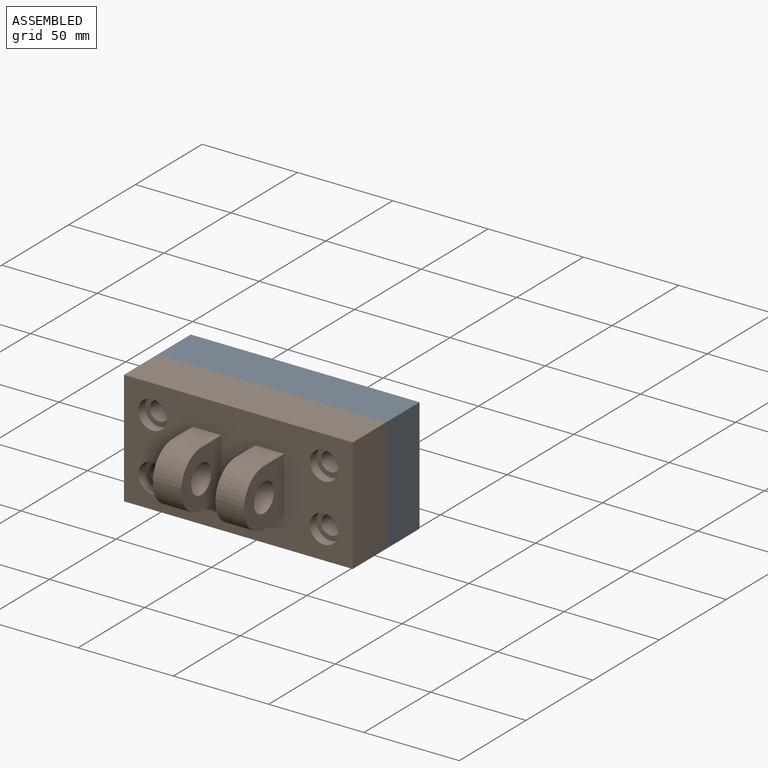
[diagram: assembled view]
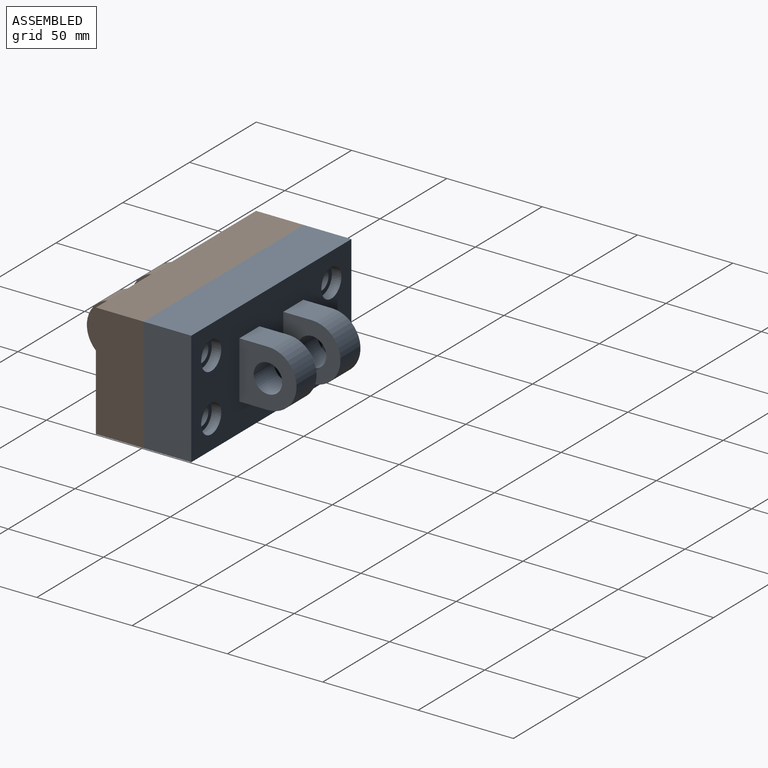
[diagram: assembled view, second angle]
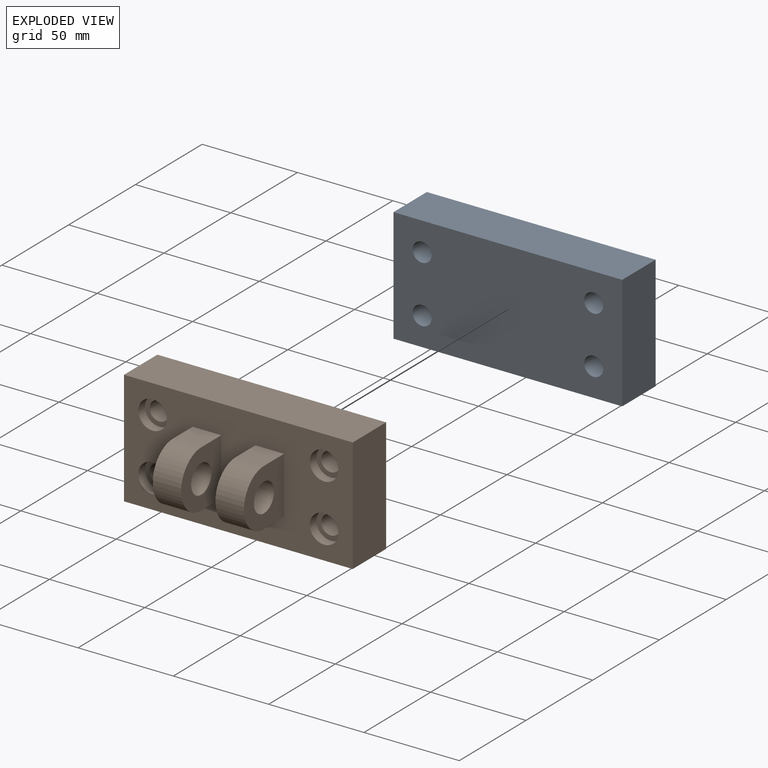
[diagram: exploded view]
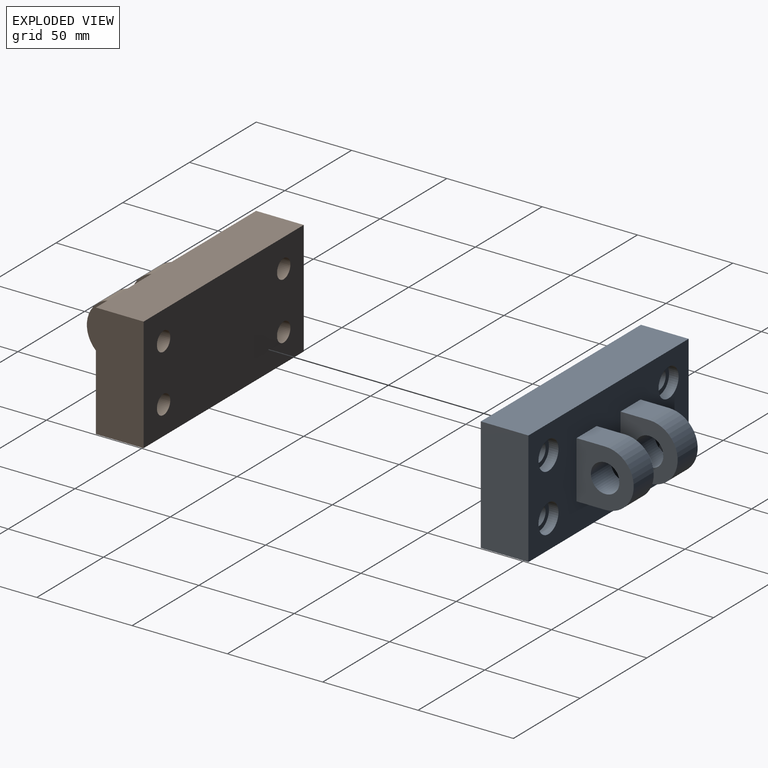
[diagram: exploded view, second angle]
ASSEMBLY  parts=2 mates=2
PART A: 30 faces, bbox 120x55x60 mm
  f0: plane 30x30mm, normal (1,0,0), area 626.7mm2, adj f4,f13,f24,f27,f28
  f1: plane 30x30mm, normal (-1,0,0), area 626.7mm2, adj f3,f13,f25,f26,f29
  f2: plane 30x30mm, normal (1,0,0), area 626.7mm2, adj f3,f13,f25,f26,f29
  f3: plane 15x15mm, normal (0,0,-1), area 225mm2, adj f1,f2,f13,f26
  f4: plane 15x15mm, normal (0,0,1), area 225mm2, adj f0,f13,f23,f27
  f5: plane 120x25mm, normal (0,0,1), area 3000mm2, adj f6,f12,f13,f14
  f6: plane 60x25mm, normal (-1,0,0), area 1500mm2, adj f5,f7,f13,f14
  f7: plane 120x25mm, normal (0,0,-1), area 3000mm2, adj f6,f12,f13,f14
  f8: cylinder r=7.5mm len=15mm, axis (0,1,0), area 235.6mm2, adj f13,f16
  f9: cylinder r=7.5mm len=15mm, axis (0,1,0), area 235.6mm2, adj f13,f20
  f10: cylinder r=7.5mm len=15mm, axis (0,1,0), area 235.6mm2, adj f13,f22
  f11: cylinder r=7.5mm len=15mm, axis (0,1,0), area 235.6mm2, adj f13,f18
  f12: plane 60x25mm, normal (1,0,0), area 1500mm2, adj f5,f7,f13,f14
  f13: plane 120x60mm, normal (0,-1,0), area 5593.1mm2, adj f0,f1,f2,f3,f4,f5,f6,f7
  f14: plane 120x60mm, normal (0,1,0), area 6885.8mm2, adj f5,f6,f7,f12,f15,f17,f19,f21
  f15: cylinder r=5mm len=20mm, axis (0,1,0), area 628.3mm2, adj f14,f16
  f16: plane 15x15mm, normal (0,-1,0), area 98.2mm2, adj f8,f15
  f17: cylinder r=5mm len=20mm, axis (0,1,0), area 628.3mm2, adj f14,f18
  f18: plane 15x15mm, normal (0,-1,0), area 98.2mm2, adj f11,f17
  f19: cylinder r=5mm len=20mm, axis (0,1,0), area 628.3mm2, adj f14,f20
  f20: plane 15x15mm, normal (0,-1,0), area 98.2mm2, adj f9,f19
  f21: cylinder r=5mm len=20mm, axis (0,1,0), area 628.3mm2, adj f14,f22
  f22: plane 15x15mm, normal (0,-1,0), area 98.2mm2, adj f10,f21
  f23: plane 30x30mm, normal (-1,0,0), area 626.7mm2, adj f4,f13,f24,f27,f28
  f24: plane 15x15mm, normal (0,0,-1), area 225mm2, adj f0,f13,f23,f27
  f25: plane 15x15mm, normal (0,0,1), area 225mm2, adj f1,f2,f13,f26
  f26: cylinder r=15mm len=30mm, axis (-1,0,0), area 706.9mm2, adj f1,f2,f3,f25
  f27: cylinder r=15mm len=30mm, axis (-1,0,0), area 706.9mm2, adj f0,f4,f23,f24
  f28: cylinder r=7.5mm len=15mm, axis (-1,0,0), area 706.9mm2, adj f0,f23
  f29: cylinder r=7.5mm len=15mm, axis (-1,0,0), area 706.9mm2, adj f1,f2
PART B: same geometry as A
PLACE A rot(axis=(1,0,0),180deg) t=(-118.07,-96.24,80.69)mm
PLACE B rot(axis=(0,1,0),0deg) t=(-118.07,-96.24,83.73)mm fixed
MATE revolute A.f9 <-> B.f8  axis (0,-1,0) through (-151.04,-96.24,67.21)mm
MATE revolute B.f11 <-> A.f10  axis (0,1,0) through (-61.04,-96.24,67.21)mm
